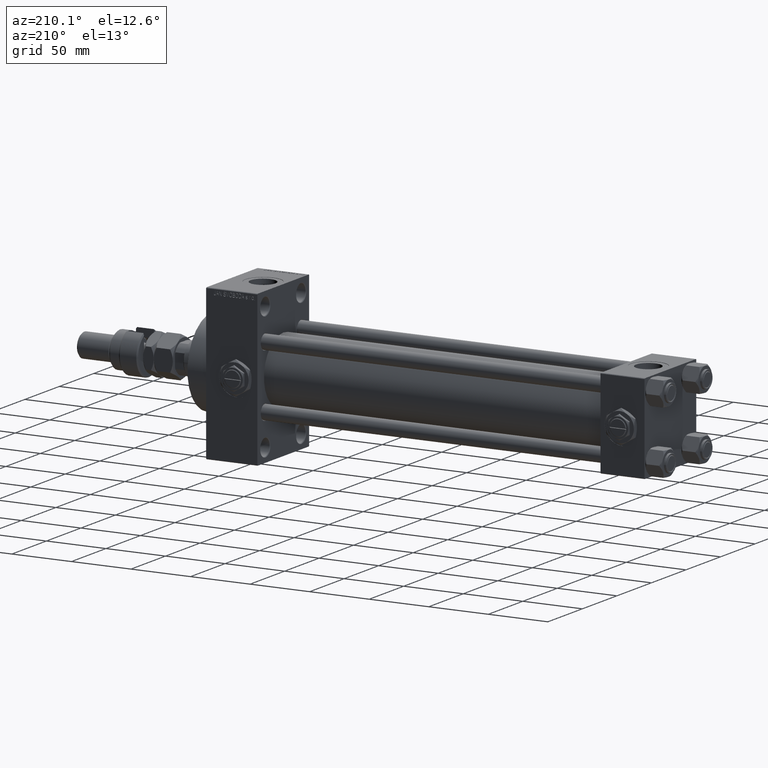
[diagram: clean part render]
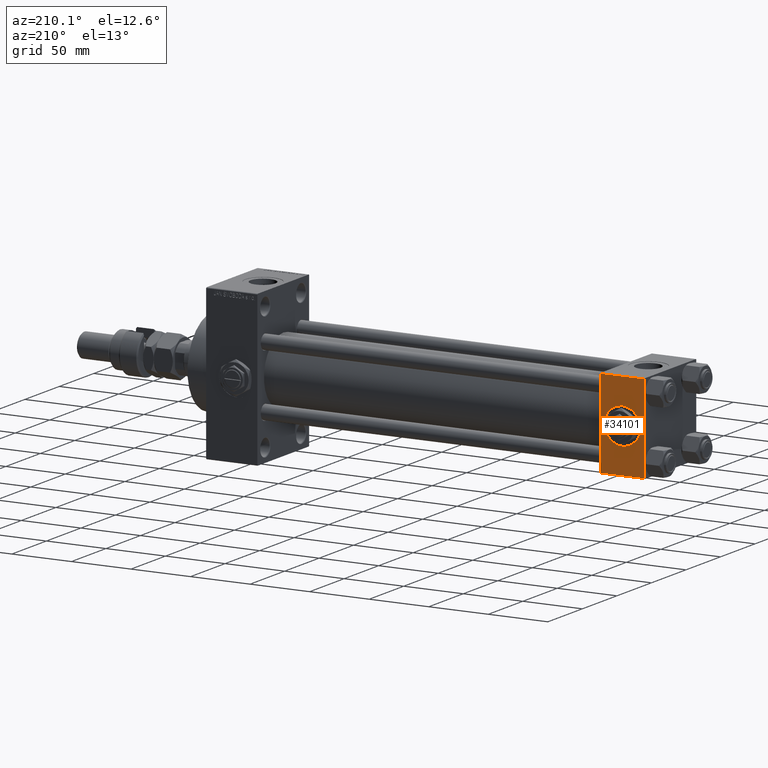
[diagram: same view with one face highlighted and labeled with its STEP entity id]
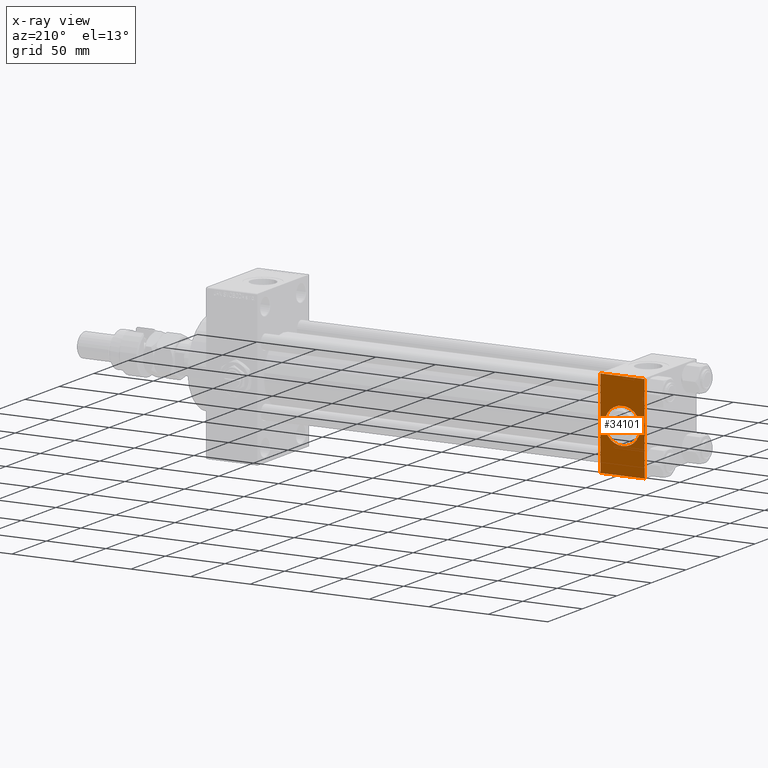
[diagram: x-ray of the same camera — body ghosted, the highlighted face saturated]
A machine part, auxiliary view. The second image highlights one B-rep face of the part: STEP entity #34101.
The next image is the same camera in x-ray: the body ghosted, the highlighted face saturated — about 0% of this face is hidden behind the body in this view.
In plain terms, the highlighted planar face has unit normal (0, 1, 0).
Its self-contained STEP definition (entity closure, byte-faithful):
#1548 = EDGE_LOOP ( 'NONE', ( #28716, #22271, #51900, #20684 ) ) ;
#3101 = FACE_OUTER_BOUND ( 'NONE', #1548, .T. ) ;
#3454 = LINE ( 'NONE', #28002, #24131 ) ;
#3746 = ORIENTED_EDGE ( 'NONE', *, *, #47551, .F. ) ;
#3945 = VECTOR ( 'NONE', #20034, 1000.000000000000000 ) ;
#4095 = ORIENTED_EDGE ( 'NONE', *, *, #50379, .F. ) ;
#4778 = DIRECTION ( 'NONE',  ( 0.000000000000000000, 0.000000000000000000, -1.000000000000000000 ) ) ;
#5037 = LINE ( 'NONE', #34047, #28340 ) ;
#5265 = AXIS2_PLACEMENT_3D ( 'NONE', #23679, #15254, #39760 ) ;
#5290 = DIRECTION ( 'NONE',  ( 0.000000000000000000, 1.000000000000000000, 0.000000000000000000 ) ) ;
#5672 = VERTEX_POINT ( 'NONE', #9236 ) ;
#7586 = PLANE ( 'NONE',  #5265 ) ;
#9236 = CARTESIAN_POINT ( 'NONE',  ( 37.00000000000000000, 37.49999999999999289, 37.00000000000000000 ) ) ;
#9870 = EDGE_CURVE ( 'NONE', #5672, #16517, #5037, .T. ) ;
#13652 = LINE ( 'NONE', #29749, #48805 ) ;
#15105 = EDGE_CURVE ( 'NONE', #16517, #49352, #16088, .T. ) ;
#15254 = DIRECTION ( 'NONE',  ( -0.000000000000000000, 1.000000000000000000, 0.000000000000000000 ) ) ;
#16088 = LINE ( 'NONE', #23728, #3945 ) ;
#16517 = VERTEX_POINT ( 'NONE', #29214 ) ;
#19780 = DIRECTION ( 'NONE',  ( 0.000000000000000000, 1.000000000000000000, 0.000000000000000000 ) ) ;
#20034 = DIRECTION ( 'NONE',  ( -1.000000000000000000, 0.000000000000000000, 0.000000000000000000 ) ) ;
#20043 = DIRECTION ( 'NONE',  ( 0.000000000000000000, 0.000000000000000000, 1.000000000000000000 ) ) ;
#20684 = ORIENTED_EDGE ( 'NONE', *, *, #38977, .T. ) ;
#21830 = AXIS2_PLACEMENT_3D ( 'NONE', #25858, #5290, #37200 ) ;
#22271 = ORIENTED_EDGE ( 'NONE', *, *, #15105, .T. ) ;
#23675 = EDGE_LOOP ( 'NONE', ( #4095, #3746 ) ) ;
#23679 = CARTESIAN_POINT ( 'NONE',  ( 37.00000000000000000, 37.49999999999999289, 37.50000000000000000 ) ) ;
#23728 = CARTESIAN_POINT ( 'NONE',  ( 37.00000000000000000, 37.49999999999999289, -36.99999999999998579 ) ) ;
#23834 = EDGE_CURVE ( 'NONE', #26171, #49352, #13652, .T. ) ;
#24131 = VECTOR ( 'NONE', #44307, 1000.000000000000000 ) ;
#25858 = CARTESIAN_POINT ( 'NONE',  ( 18.50000000000000000, 37.49999999999999289, 0.000000000000000000 ) ) ;
#26171 = VERTEX_POINT ( 'NONE', #34170 ) ;
#28002 = CARTESIAN_POINT ( 'NONE',  ( 37.00000000000000000, 37.49999999999999289, 37.00000000000000000 ) ) ;
#28340 = VECTOR ( 'NONE', #4778, 1000.000000000000000 ) ;
#28716 = ORIENTED_EDGE ( 'NONE', *, *, #9870, .T. ) ;
#29214 = CARTESIAN_POINT ( 'NONE',  ( 37.00000000000000000, 37.49999999999999289, -36.99999999999998579 ) ) ;
#29749 = CARTESIAN_POINT ( 'NONE',  ( 0.000000000000000000, 37.49999999999999289, 37.50000000000000000 ) ) ;
#34047 = CARTESIAN_POINT ( 'NONE',  ( 37.00000000000000000, 37.49999999999999289, 37.50000000000000000 ) ) ;
#34101 = ADVANCED_FACE ( 'NONE', ( #39227, #3101 ), #7586, .T. ) ;
#34170 = CARTESIAN_POINT ( 'NONE',  ( 0.000000000000000000, 37.49999999999999289, 37.00000000000000000 ) ) ;
#37200 = DIRECTION ( 'NONE',  ( 0.000000000000000000, 0.000000000000000000, 1.000000000000000000 ) ) ;
#38977 = EDGE_CURVE ( 'NONE', #26171, #5672, #3454, .T. ) ;
#39227 = FACE_BOUND ( 'NONE', #23675, .T. ) ;
#39506 = CIRCLE ( 'NONE', #21830, 15.00000000000000178 ) ;
#39622 = AXIS2_PLACEMENT_3D ( 'NONE', #44011, #19780, #20043 ) ;
#39760 = DIRECTION ( 'NONE',  ( 0.000000000000000000, -0.000000000000000000, 1.000000000000000000 ) ) ;
#39769 = VERTEX_POINT ( 'NONE', #43084 ) ;
#40067 = CARTESIAN_POINT ( 'NONE',  ( 0.000000000000000000, 37.49999999999999289, -36.99999999999998579 ) ) ;
#41601 = DIRECTION ( 'NONE',  ( 0.000000000000000000, 0.000000000000000000, -1.000000000000000000 ) ) ;
#43084 = CARTESIAN_POINT ( 'NONE',  ( 18.50000000000000355, 37.49999999999999289, -15.00000000000000178 ) ) ;
#44011 = CARTESIAN_POINT ( 'NONE',  ( 18.50000000000000000, 37.49999999999999289, 0.000000000000000000 ) ) ;
#44307 = DIRECTION ( 'NONE',  ( 1.000000000000000000, 0.000000000000000000, 0.000000000000000000 ) ) ;
#45032 = CARTESIAN_POINT ( 'NONE',  ( 18.50000000000000000, 37.49999999999999289, 15.00000000000000178 ) ) ;
#45491 = CIRCLE ( 'NONE', #39622, 15.00000000000000178 ) ;
#47551 = EDGE_CURVE ( 'NONE', #39769, #47877, #39506, .T. ) ;
#47877 = VERTEX_POINT ( 'NONE', #45032 ) ;
#48805 = VECTOR ( 'NONE', #41601, 1000.000000000000000 ) ;
#49352 = VERTEX_POINT ( 'NONE', #40067 ) ;
#50379 = EDGE_CURVE ( 'NONE', #47877, #39769, #45491, .T. ) ;
#51900 = ORIENTED_EDGE ( 'NONE', *, *, #23834, .F. ) ;